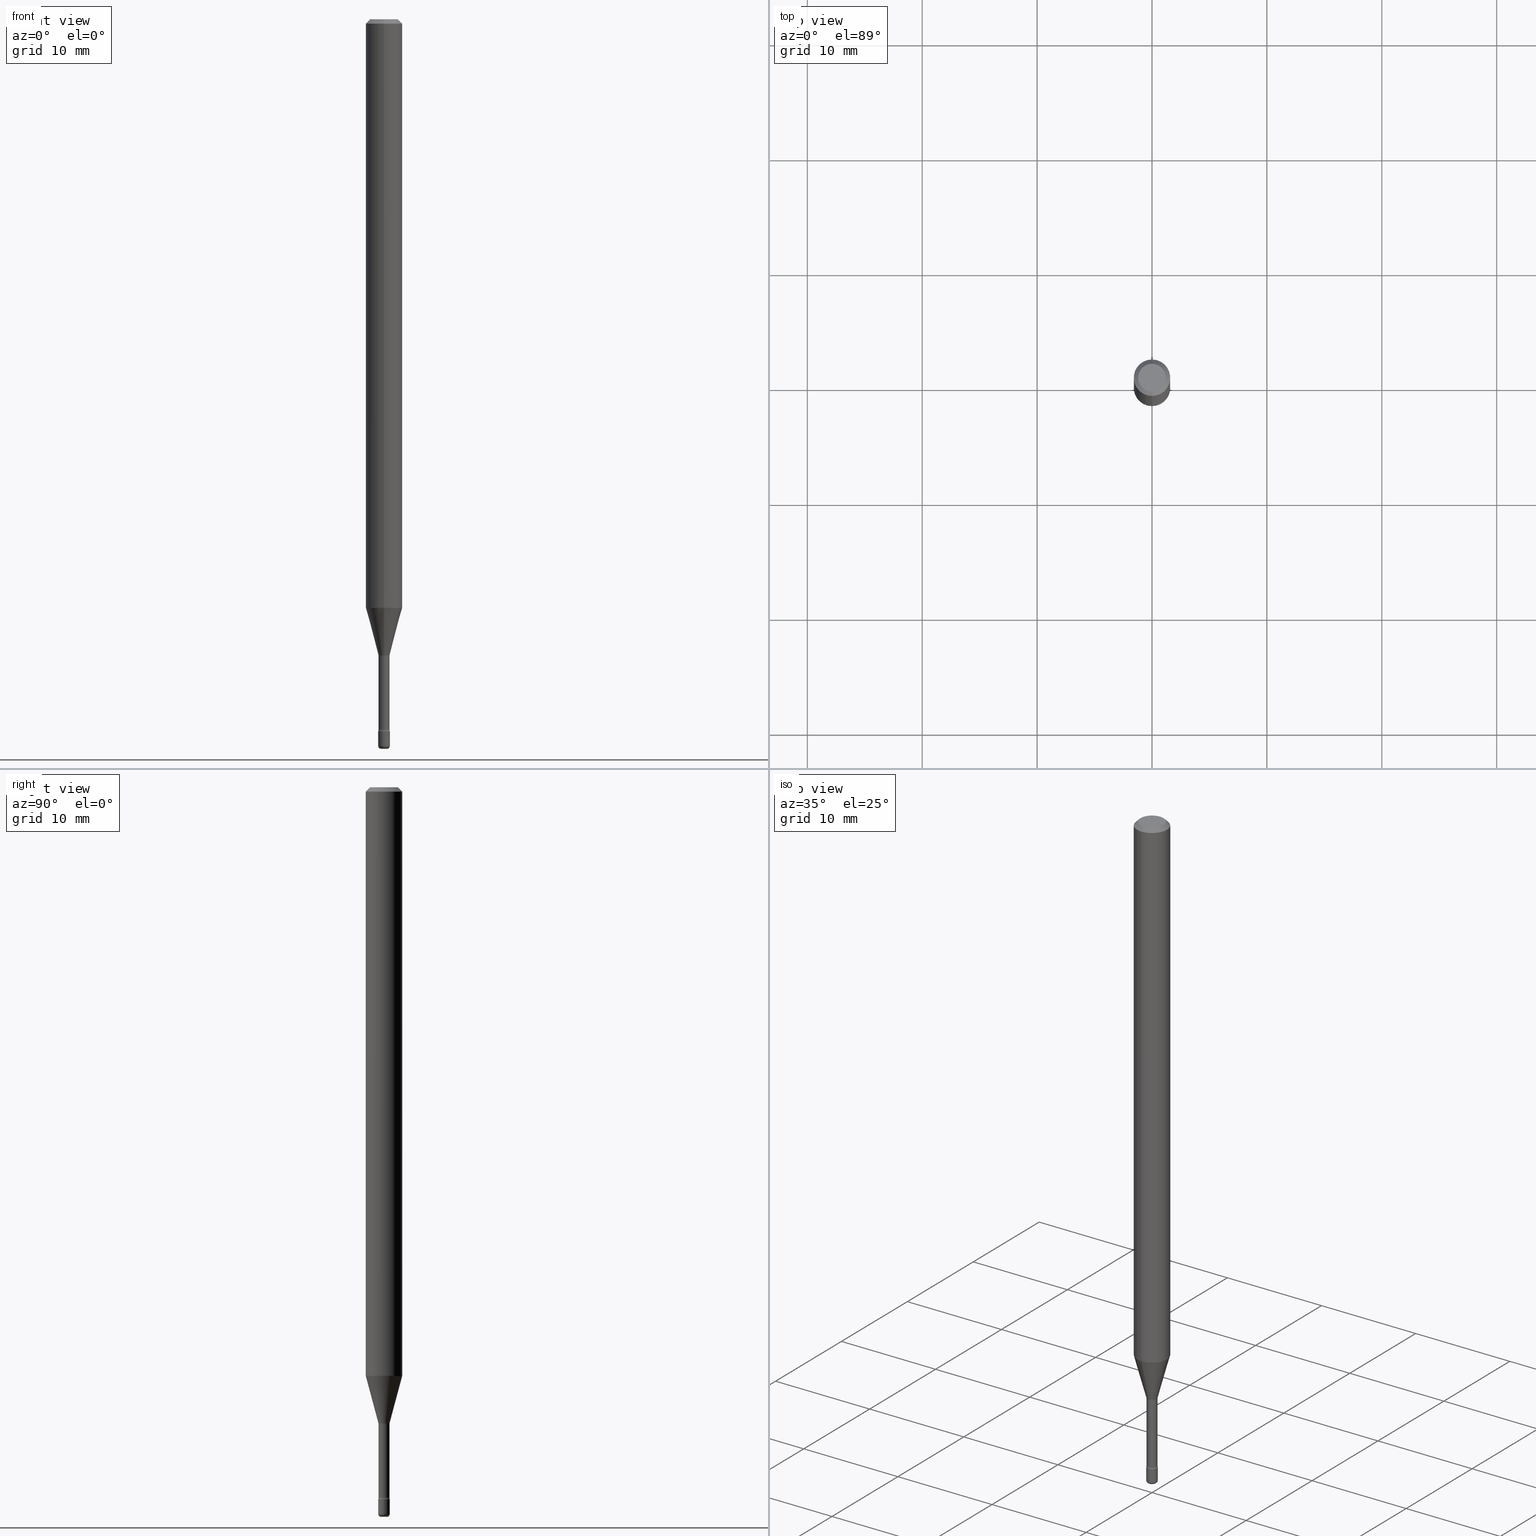
[diagram: canonical four-view strip — front | top / right | iso, engineering-drawing reading convention]
A machine part, canonical four-view strip (front | top / right | iso — engineering-drawing reading convention). The complete STEP part file that produces these views, byte-faithful:
ISO-10303-21;
HEADER;
FILE_DESCRIPTION (( 'STEP AP203' ),
    '1' );
FILE_NAME ('08804.STEP',
    '2024-03-06T20:03:07',
    ( '' ),
    ( '' ),
    'SwSTEP 2.0',
    'SolidWorks 2023',
    '' );
FILE_SCHEMA (( 'CONFIG_CONTROL_DESIGN' ));
ENDSEC;

DATA;
#1 = DIRECTION ( 'NONE',  ( 1.839019923739597160E-15, 0.2588190451025245142, 0.9659258262890673130 ) ) ;
#2 = CC_DESIGN_SECURITY_CLASSIFICATION ( #59, ( #185 ) ) ;
#3 = DIRECTION ( 'NONE',  ( -2.445468806185136597E-29, 3.491481338843145583E-15, 1.000000000000000000 ) ) ;
#4 = DIRECTION ( 'NONE',  ( -2.445405662716490355E-29, 3.491571763884150069E-15, 1.000000000000000000 ) ) ;
#5 = DIRECTION ( 'NONE',  ( -6.982962677686265133E-15, -1.000000000000000000, 3.491571763884149675E-15 ) ) ;
#6 = DIRECTION ( 'NONE',  ( -6.982962677686265922E-15, -1.000000000000000000, 3.483106191921935554E-15 ) ) ;
#7 = EDGE_CURVE ( 'NONE', #409, #557, #210, .T. ) ;
#8 = DIRECTION ( 'NONE',  ( 7.105427357601001859E-15, 1.000000000000000000, -3.491481338843145583E-15 ) ) ;
#9 = CIRCLE ( 'NONE', #88, 0.01000000000000000021 ) ;
#10 = AXIS2_PLACEMENT_3D ( 'NONE', #140, #4, #178 ) ;
#11 = CARTESIAN_POINT ( 'NONE',  ( 4.440892098501122158E-16, 0.06249999999999995143, -0.01500000000000024578 ) ) ;
#12 = ORIENTED_EDGE ( 'NONE', *, *, #132, .T. ) ;
#13 = DIRECTION ( 'NONE',  ( 6.982962677686265922E-15, 1.000000000000000000, -3.491571763884150069E-15 ) ) ;
#14 = COORDINATED_UNIVERSAL_TIME_OFFSET ( 5, 0, .BEHIND. ) ;
#15 = APPROVAL_PERSON_ORGANIZATION ( #21, #75, #225 ) ;
#16 = DIRECTION ( 'NONE',  ( -2.445468806185136877E-29, 3.491481338843145188E-15, 1.000000000000000000 ) ) ;
#17 = FACE_OUTER_BOUND ( 'NONE', #146, .T. ) ;
#18 = CARTESIAN_POINT ( 'NONE',  ( 5.966789817028236028E-29, -8.519435103877327416E-15, -2.440000000000000391 ) ) ;
#19 = ORIENTED_EDGE ( 'NONE', *, *, #46, .F. ) ;
#20 = CARTESIAN_POINT ( 'NONE',  ( 1.335820343228986430E-16, 0.01879999999999997645, 4.124318497302241550E-16 ) ) ;
#21 = PERSON_AND_ORGANIZATION ( #41, #551 ) ;
#22 = ORIENTED_EDGE ( 'NONE', *, *, #513, .F. ) ;
#23 = CIRCLE ( 'NONE', #323, 0.01879999999999999727 ) ;
#24 = DIRECTION ( 'NONE',  ( -6.982962677686265922E-15, -1.000000000000000000, 0.000000000000000000 ) ) ;
#25 = ADVANCED_FACE ( 'NONE', ( #436 ), #297, .T. ) ;
#26 = AXIS2_PLACEMENT_3D ( 'NONE', #317, #531, #179 ) ;
#27 = DIRECTION ( 'NONE',  ( -2.445405662716490355E-29, 3.491571763884150069E-15, 1.000000000000000000 ) ) ;
#28 = CC_DESIGN_PERSON_AND_ORGANIZATION_ASSIGNMENT ( #426, #201, ( #517 ) ) ;
#29 = VECTOR ( 'NONE', #1, 39.37007874015748143 ) ;
#30 = ORIENTED_EDGE ( 'NONE', *, *, #70, .F. ) ;
#31 = EDGE_CURVE ( 'NONE', #170, #147, #444, .T. ) ;
#32 = APPROVAL_DATE_TIME ( #119, #554 ) ;
#33 = CYLINDRICAL_SURFACE ( 'NONE', #105, 0.06250000000000000000 ) ;
#34 = EDGE_LOOP ( 'NONE', ( #238, #300, #286, #402 ) ) ;
#35 = DIRECTION ( 'NONE',  ( -2.445405662716490355E-29, 3.491571763884150069E-15, 1.000000000000000000 ) ) ;
#36 = CIRCLE ( 'NONE', #547, 0.04750000000000000749 ) ;
#37 = PERSON_AND_ORGANIZATION ( #41, #551 ) ;
#38 = DIRECTION ( 'NONE',  ( -4.851104656540962697E-15, -0.7071067811865497932, -0.7071067811865452413 ) ) ;
#39 = ORIENTED_EDGE ( 'NONE', *, *, #7, .T. ) ;
#40 = EDGE_CURVE ( 'NONE', #72, #170, #163, .T. ) ;
#41 = PERSON ( 'UNSPECIFIED', 'UNSPECIFIED', 'UNSPECIFIED', ('UNSPECIFIED'), ('UNSPECIFIED'), ('UNSPECIFIED') ) ;
#42 = ORIENTED_EDGE ( 'NONE', *, *, #257, .T. ) ;
#43 = AXIS2_PLACEMENT_3D ( 'NONE', #320, #279, #217 ) ;
#44 = DIRECTION ( 'NONE',  ( -2.445405662716490355E-29, 3.491571763884150069E-15, 1.000000000000000000 ) ) ;
#45 = DIRECTION ( 'NONE',  ( 7.105427357600999492E-15, 1.000000000000000000, 0.000000000000000000 ) ) ;
#46 = EDGE_CURVE ( 'NONE', #147, #332, #182, .T. ) ;
#47 = CARTESIAN_POINT ( 'NONE',  ( 3.668108494074741645E-31, -5.237357645826235236E-17, -0.01500000000000002720 ) ) ;
#48 = CARTESIAN_POINT ( 'NONE',  ( 2.401634446869734478E-16, 0.03379999999999151739, -2.434121224617320056 ) ) ;
#49 = FACE_OUTER_BOUND ( 'NONE', #34, .T. ) ;
#50 = DATE_AND_TIME ( #532, #281 ) ;
#51 = CC_DESIGN_DATE_AND_TIME_ASSIGNMENT ( #50, #195, ( #59 ) ) ;
#52 = DIRECTION ( 'NONE',  ( -2.445405662716490635E-29, 3.491571763884150069E-15, 1.000000000000000000 ) ) ;
#53 = CARTESIAN_POINT ( 'NONE',  ( 6.089217327400989947E-29, -8.693788533719431716E-15, -2.489999999999999769 ) ) ;
#54 = PERSON_AND_ORGANIZATION_ROLE ( 'classification_officer' ) ;
#55 = CIRCLE ( 'NONE', #308, 0.04750000000000000749 ) ;
#56 = CIRCLE ( 'NONE', #366, 0.01879999999999999727 ) ;
#57 = CARTESIAN_POINT ( 'NONE',  ( -1.169113584055446105E-44, 1.669184350826100908E-30, 4.780733988912460139E-16 ) ) ;
#58 = ORIENTED_EDGE ( 'NONE', *, *, #143, .T. ) ;
#59 = SECURITY_CLASSIFICATION ( '', '', #568 ) ;
#60 =( LENGTH_UNIT ( ) NAMED_UNIT ( * ) SI_UNIT ( $, .METRE. ) );
#61 = EDGE_LOOP ( 'NONE', ( #377, #404, #363, #484 ) ) ;
#62 = ORIENTED_EDGE ( 'NONE', *, *, #350, .F. ) ;
#63 = EDGE_CURVE ( 'NONE', #170, #72, #524, .T. ) ;
#64 = LINE ( 'NONE', #20, #98 ) ;
#65 = CIRCLE ( 'NONE', #291, 0.01000000000000008521 ) ;
#66 = EDGE_CURVE ( 'NONE', #374, #457, #56, .T. ) ;
#67 = VECTOR ( 'NONE', #254, 39.37007874015748143 ) ;
#68 = DIRECTION ( 'NONE',  ( -1.807323732225326984E-15, -0.2588190451025177419, 0.9659258262890690894 ) ) ;
#69 = FACE_OUTER_BOUND ( 'NONE', #177, .T. ) ;
#70 = EDGE_CURVE ( 'NONE', #82, #481, #65, .T. ) ;
#71 = AXIS2_PLACEMENT_3D ( 'NONE', #133, #438, #220 ) ;
#72 = VERTEX_POINT ( 'NONE', #199 ) ;
#73 = AXIS2_PLACEMENT_3D ( 'NONE', #106, #534, #467 ) ;
#74 = DIRECTION ( 'NONE',  ( -2.445405662716490355E-29, 3.491571763884150069E-15, 1.000000000000000000 ) ) ;
#75 = APPROVAL ( #359, 'UNSPECIFIED' ) ;
#76 = APPLICATION_PROTOCOL_DEFINITION ( 'international standard', 'config_control_design', 1994, #449 ) ;
#77 = ORIENTED_EDGE ( 'NONE', *, *, #421, .F. ) ;
#78 = CARTESIAN_POINT ( 'NONE',  ( 4.364351673553919652E-16, 0.06249999999999995143, -0.01500000000000024578 ) ) ;
#79 = AXIS2_PLACEMENT_3D ( 'NONE', #191, #535, #364 ) ;
#80 = TOROIDAL_SURFACE ( 'NONE', #10, 0.03380000000000001059, 0.01500000000000006189 ) ;
#81 =( NAMED_UNIT ( * ) SI_UNIT ( $, .STERADIAN. ) SOLID_ANGLE_UNIT ( ) );
#82 = VERTEX_POINT ( 'NONE', #290 ) ;
#83 = EDGE_CURVE ( 'NONE', #506, #378, #36, .T. ) ;
#84 = MANIFOLD_SOLID_BREP ( 'Body-Move/Copy2[1]', #346 ) ;
#85 = EDGE_LOOP ( 'NONE', ( #515, #208, #246, #564 ) ) ;
#86 = ORIENTED_EDGE ( 'NONE', *, *, #100, .F. ) ;
#87 = FACE_OUTER_BOUND ( 'NONE', #127, .T. ) ;
#88 = AXIS2_PLACEMENT_3D ( 'NONE', #187, #405, #233 ) ;
#89 = AXIS2_PLACEMENT_3D ( 'NONE', #134, #313, #560 ) ;
#90 = CARTESIAN_POINT ( 'NONE',  ( 4.932161618326981026E-29, -7.042183840505880403E-15, -2.016909379709240557 ) ) ;
#91 = DIRECTION ( 'NONE',  ( 1.000000000000000000, -6.982962677686265922E-15, 4.876176775795935793E-29 ) ) ;
#92 = AXIS2_PLACEMENT_3D ( 'NONE', #295, #128, #158 ) ;
#93 = AXIS2_PLACEMENT_3D ( 'NONE', #216, #74, #539 ) ;
#94 = DIRECTION ( 'NONE',  ( -6.982962677686265922E-15, -1.000000000000000000, 0.000000000000000000 ) ) ;
#95 = DIRECTION ( 'NONE',  ( -6.982962677686266711E-15, -1.000000000000000000, 0.000000000000000000 ) ) ;
#96 = LINE ( 'NONE', #399, #519 ) ;
#97 = DIRECTION ( 'NONE',  ( -6.982962677686265922E-15, -1.000000000000000000, 3.491571763884150069E-15 ) ) ;
#98 = VECTOR ( 'NONE', #275, 39.37007874015748143 ) ;
#99 = CIRCLE ( 'NONE', #510, 0.01000000000000008521 ) ;
#100 = EDGE_CURVE ( 'NONE', #550, #269, #239, .T. ) ;
#101 = DIRECTION ( 'NONE',  ( -2.445405662716490355E-29, 3.491571763884150069E-15, 1.000000000000000000 ) ) ;
#102 = PLANE ( 'NONE',  #416 ) ;
#103 = CC_DESIGN_APPROVAL ( #483, ( #517 ) ) ;
#104 = DIRECTION ( 'NONE',  ( -2.445468806185136597E-29, 3.491481338843145583E-15, 1.000000000000000000 ) ) ;
#105 = AXIS2_PLACEMENT_3D ( 'NONE', #108, #35, #117 ) ;
#106 = CARTESIAN_POINT ( 'NONE',  ( 5.326319737790925747E-29, -7.604966278368231039E-15, -2.178092501787273427 ) ) ;
#107 = EDGE_LOOP ( 'NONE', ( #58, #193, #349, #165 ) ) ;
#108 = CARTESIAN_POINT ( 'NONE',  ( -1.169113584055446105E-44, 1.669184350826100908E-30, 4.780733988912460139E-16 ) ) ;
#109 = DIRECTION ( 'NONE',  ( -6.982962677686265922E-15, -1.000000000000000000, 4.370956789862821150E-15 ) ) ;
#110 = AXIS2_PLACEMENT_3D ( 'NONE', #203, #148, #424 ) ;
#111 = EDGE_CURVE ( 'NONE', #150, #481, #437, .T. ) ;
#112 = TOROIDAL_SURFACE ( 'NONE', #330, 0.03380000000000000365, 0.01500000000000002373 ) ;
#113 = APPROVAL_PERSON_ORGANIZATION ( #425, #483, #212 ) ;
#114 = DIRECTION ( 'NONE',  ( -2.445405662716490355E-29, 3.491571763884150069E-15, 1.000000000000000000 ) ) ;
#115 = ORIENTED_EDGE ( 'NONE', *, *, #66, .F. ) ;
#116 = CONICAL_SURFACE ( 'NONE', #552, 0.01931111260566398605, 0.2617993877991497964 ) ;
#117 = DIRECTION ( 'NONE',  ( -6.982962677686265922E-15, -1.000000000000000000, 3.491571763884149675E-15 ) ) ;
#118 = ORIENTED_EDGE ( 'NONE', *, *, #559, .T. ) ;
#119 = DATE_AND_TIME ( #334, #205 ) ;
#120 = CARTESIAN_POINT ( 'NONE',  ( 0.02000000000000000042, -8.658873720331001644E-15, -2.440000000000000391 ) ) ;
#121 = ORIENTED_EDGE ( 'NONE', *, *, #495, .T. ) ;
#122 = ORIENTED_EDGE ( 'NONE', *, *, #468, .T. ) ;
#123 = PERSON_AND_ORGANIZATION ( #41, #551 ) ;
#124 = PLANE ( 'NONE',  #266 ) ;
#125 = CARTESIAN_POINT ( 'NONE',  ( 0.000000000000000000, 0.000000000000000000, 0.000000000000000000 ) ) ;
#126 = ORIENTED_EDGE ( 'NONE', *, *, #526, .F. ) ;
#127 = EDGE_LOOP ( 'NONE', ( #471, #118, #77, #207 ) ) ;
#128 = DIRECTION ( 'NONE',  ( -2.445405662716490355E-29, 3.491571763884150069E-15, 1.000000000000000000 ) ) ;
#129 = ADVANCED_FACE ( 'NONE', ( #464 ), #112, .F. ) ;
#130 = ORIENTED_EDGE ( 'NONE', *, *, #536, .T. ) ;
#131 = AXIS2_PLACEMENT_3D ( 'NONE', #18, #369, #545 ) ;
#132 = EDGE_CURVE ( 'NONE', #457, #374, #23, .T. ) ;
#133 = CARTESIAN_POINT ( 'NONE',  ( 6.089217327400989947E-29, -8.693788533719431716E-15, -2.489999999999999769 ) ) ;
#134 = CARTESIAN_POINT ( 'NONE',  ( 6.113672015462842613E-29, -8.728703347107864943E-15, -2.500000000000000000 ) ) ;
#135 = CARTESIAN_POINT ( 'NONE',  ( -1.169113584055446105E-44, 1.669184350826100908E-30, 4.780733988912460139E-16 ) ) ;
#136 = DIRECTION ( 'NONE',  ( -2.445405662716490075E-29, 3.491571763884150069E-15, 1.000000000000000000 ) ) ;
#137 = AXIS2_PLACEMENT_3D ( 'NONE', #48, #265, #223 ) ;
#138 = CARTESIAN_POINT ( 'NONE',  ( 5.326319737790925747E-29, -7.604966278368231039E-15, -2.178092501787273427 ) ) ;
#139 = AXIS2_PLACEMENT_3D ( 'NONE', #53, #523, #267 ) ;
#140 = CARTESIAN_POINT ( 'NONE',  ( 5.952567525274820860E-29, -8.498688832233398804E-15, -2.434121224617320056 ) ) ;
#141 = DIRECTION ( 'NONE',  ( -1.000000000000000000, 7.105427357600962416E-15, 0.000000000000000000 ) ) ;
#142 = COORDINATED_UNIVERSAL_TIME_OFFSET ( 5, 0, .BEHIND. ) ;
#143 = EDGE_CURVE ( 'NONE', #310, #325, #262, .T. ) ;
#144 = CARTESIAN_POINT ( 'NONE',  ( 1.372137078140516776E-16, 0.01931111260565637755, -2.178092501787273427 ) ) ;
#145 = AXIS2_PLACEMENT_3D ( 'NONE', #318, #392, #180 ) ;
#146 = EDGE_LOOP ( 'NONE', ( #22, #403, #121, #537 ) ) ;
#147 = VERTEX_POINT ( 'NONE', #11 ) ;
#148 = DIRECTION ( 'NONE',  ( -2.445405662716490355E-29, 3.491571763884150069E-15, 1.000000000000000000 ) ) ;
#149 = CARTESIAN_POINT ( 'NONE',  ( 5.335813501168614351E-29, -7.618521557415763764E-15, -2.181974787463811349 ) ) ;
#150 = VERTEX_POINT ( 'NONE', #485 ) ;
#151 = ADVANCED_FACE ( 'NONE', ( #87 ), #260, .T. ) ;
#152 = CARTESIAN_POINT ( 'NONE',  ( 6.089217327400989947E-29, -8.693788533719431716E-15, -2.489999999999999769 ) ) ;
#153 = CARTESIAN_POINT ( 'NONE',  ( 2.906514588320818974E-16, 0.01931111260565637755, -2.178092501787273427 ) ) ;
#154 = ORIENTED_EDGE ( 'NONE', *, *, #63, .T. ) ;
#155 = CONICAL_SURFACE ( 'NONE', #549, 0.01931111260566398605, 0.2617993877991497964 ) ;
#156 = AXIS2_PLACEMENT_3D ( 'NONE', #47, #226, #6 ) ;
#157 = EDGE_LOOP ( 'NONE', ( #386, #558, #383, #122 ) ) ;
#158 = DIRECTION ( 'NONE',  ( -6.982962677686265922E-15, -1.000000000000000000, 0.000000000000000000 ) ) ;
#159 = ADVANCED_FACE ( 'NONE', ( #525 ), #230, .T. ) ;
#160 = ORIENTED_EDGE ( 'NONE', *, *, #468, .F. ) ;
#161 = COORDINATED_UNIVERSAL_TIME_OFFSET ( 5, 0, .BEHIND. ) ;
#162 = CARTESIAN_POINT ( 'NONE',  ( -0.01000000000000000021, -8.604664530049632418E-15, -2.500000000000000000 ) ) ;
#163 = CIRCLE ( 'NONE', #489, 0.06250000000000000000 ) ;
#164 = ORIENTED_EDGE ( 'NONE', *, *, #335, .F. ) ;
#165 = ORIENTED_EDGE ( 'NONE', *, *, #236, .F. ) ;
#166 = PERSON_AND_ORGANIZATION ( #41, #551 ) ;
#167 = FACE_OUTER_BOUND ( 'NONE', #368, .T. ) ;
#168 = EDGE_CURVE ( 'NONE', #481, #150, #572, .T. ) ;
#169 = APPROVAL_DATE_TIME ( #303, #483 ) ;
#170 = VERTEX_POINT ( 'NONE', #358 ) ;
#171 = CIRCLE ( 'NONE', #211, 0.01500000000000002373 ) ;
#172 = AXIS2_PLACEMENT_3D ( 'NONE', #135, #101, #493 ) ;
#173 = EDGE_CURVE ( 'NONE', #325, #550, #429, .T. ) ;
#174 = ORIENTED_EDGE ( 'NONE', *, *, #373, .F. ) ;
#175 = FACE_OUTER_BOUND ( 'NONE', #157, .T. ) ;
#176 = ORIENTED_EDGE ( 'NONE', *, *, #40, .T. ) ;
#177 = EDGE_LOOP ( 'NONE', ( #418, #543, #459, #234 ) ) ;
#178 = DIRECTION ( 'NONE',  ( -6.982962677686265922E-15, -1.000000000000000000, 3.491571763884150069E-15 ) ) ;
#179 = DIRECTION ( 'NONE',  ( -6.982962677686267499E-15, -1.000000000000000000, 0.000000000000000000 ) ) ;
#180 = DIRECTION ( 'NONE',  ( -6.982962677686265922E-15, -1.000000000000000000, 3.491571763884150069E-15 ) ) ;
#181 = FACE_OUTER_BOUND ( 'NONE', #304, .T. ) ;
#182 = CIRCLE ( 'NONE', #156, 0.06250000000000000000 ) ;
#183 = DIRECTION ( 'NONE',  ( -2.445405662716490355E-29, 3.491571763884150069E-15, 1.000000000000000000 ) ) ;
#184 = FACE_OUTER_BOUND ( 'NONE', #198, .T. ) ;
#185 = PRODUCT_DEFINITION_FORMATION_WITH_SPECIFIED_SOURCE ( 'ANY', '', #501, .NOT_KNOWN. ) ;
#186 = ADVANCED_FACE ( 'NONE', ( #175 ), #80, .F. ) ;
#187 = CARTESIAN_POINT ( 'NONE',  ( 6.113672015462842613E-29, -8.728703347107864943E-15, -2.500000000000000000 ) ) ;
#188 = AXIS2_PLACEMENT_3D ( 'NONE', #566, #340, #344 ) ;
#189 = DIRECTION ( 'NONE',  ( -6.982962677686265922E-15, -1.000000000000000000, 0.000000000000000000 ) ) ;
#190 = LINE ( 'NONE', #144, #29 ) ;
#191 = CARTESIAN_POINT ( 'NONE',  ( 3.668108494074741645E-31, -5.237357645826235236E-17, -0.01500000000000002720 ) ) ;
#192 = DIRECTION ( 'NONE',  ( -6.982962677686265922E-15, -1.000000000000000000, 3.491571763884150069E-15 ) ) ;
#193 = ORIENTED_EDGE ( 'NONE', *, *, #335, .T. ) ;
#194 = CARTESIAN_POINT ( 'NONE',  ( -1.312796983404419221E-16, -0.01880000000000844884, -2.434121224617320056 ) ) ;
#195 = DATE_TIME_ROLE ( 'classification_date' ) ;
#196 = ADVANCED_FACE ( 'NONE', ( #497 ), #396, .F. ) ;
#197 = AXIS2_PLACEMENT_3D ( 'NONE', #492, #3, #314 ) ;
#198 = EDGE_LOOP ( 'NONE', ( #164, #476, #563, #115 ) ) ;
#199 = CARTESIAN_POINT ( 'NONE',  ( -4.364351673553424149E-16, -0.06250000000000706379, -2.016909379709240113 ) ) ;
#200 = CARTESIAN_POINT ( 'NONE',  ( 1.421085471520799689E-16, 0.01999999999999151762, -2.440000000000000391 ) ) ;
#201 = PERSON_AND_ORGANIZATION_ROLE ( 'creator' ) ;
#202 = AXIS2_PLACEMENT_3D ( 'NONE', #458, #390, #351 ) ;
#203 = CARTESIAN_POINT ( 'NONE',  ( 3.668108494074741645E-31, -5.237357645826235236E-17, -0.01500000000000002720 ) ) ;
#204 = ADVANCED_FACE ( 'NONE', ( #315 ), #354, .T. ) ;
#205 = LOCAL_TIME ( 15, 3, 7.000000000000000000, #161 ) ;
#206 = ORIENTED_EDGE ( 'NONE', *, *, #40, .F. ) ;
#207 = ORIENTED_EDGE ( 'NONE', *, *, #249, .F. ) ;
#208 = ORIENTED_EDGE ( 'NONE', *, *, #513, .T. ) ;
#209 = CARTESIAN_POINT ( 'NONE',  ( 5.952567525274820860E-29, -8.498688832233398804E-15, -2.434121224617320056 ) ) ;
#210 = CIRCLE ( 'NONE', #316, 0.01931111260566398605 ) ;
#211 = AXIS2_PLACEMENT_3D ( 'NONE', #447, #486, #45 ) ;
#212 = APPROVAL_ROLE ( '' ) ;
#213 = ORIENTED_EDGE ( 'NONE', *, *, #329, .T. ) ;
#214 = LOCAL_TIME ( 15, 3, 7.000000000000000000, #562 ) ;
#215 = CONICAL_SURFACE ( 'NONE', #232, 0.06250000000000000000, 0.7853981633974480570 ) ;
#216 = CARTESIAN_POINT ( 'NONE',  ( 5.952413826417592724E-29, -8.498908937744944151E-15, -2.434121224617320056 ) ) ;
#217 = DIRECTION ( 'NONE',  ( 1.000000000000000000, -6.982962677686284065E-15, 0.000000000000000000 ) ) ;
#218 = AXIS2_PLACEMENT_3D ( 'NONE', #284, #136, #97 ) ;
#219 = APPLICATION_PROTOCOL_DEFINITION ( 'international standard', 'config_control_design', 1994, #414 ) ;
#220 = DIRECTION ( 'NONE',  ( 1.000000000000000000, -6.982962677686284065E-15, 0.000000000000000000 ) ) ;
#221 = CARTESIAN_POINT ( 'NONE',  ( 6.620336107700046510E-46, -9.461207396860594048E-32, -2.708489200769174578E-17 ) ) ;
#222 = VECTOR ( 'NONE', #68, 39.37007874015748143 ) ;
#223 = DIRECTION ( 'NONE',  ( 7.105427357601000281E-15, 1.000000000000000000, 0.000000000000000000 ) ) ;
#224 = LINE ( 'NONE', #271, #465 ) ;
#225 = APPROVAL_ROLE ( '' ) ;
#226 = DIRECTION ( 'NONE',  ( -2.445405662716490355E-29, 3.491571763884150069E-15, 1.000000000000000000 ) ) ;
#227 = CYLINDRICAL_SURFACE ( 'NONE', #277, 0.01879999999999997645 ) ;
#228 = CARTESIAN_POINT ( 'NONE',  ( 3.316907271900976589E-16, 0.04750000000000000749, 5.964459465728003776E-17 ) ) ;
#229 = AXIS2_PLACEMENT_3D ( 'NONE', #273, #395, #270 ) ;
#230 = CYLINDRICAL_SURFACE ( 'NONE', #172, 0.01879999999999997645 ) ;
#231 = CC_DESIGN_DATE_AND_TIME_ASSIGNMENT ( #423, #419, ( #517 ) ) ;
#232 = AXIS2_PLACEMENT_3D ( 'NONE', #469, #326, #251 ) ;
#233 = DIRECTION ( 'NONE',  ( 1.000000000000000000, -6.982962677686235945E-15, 0.000000000000000000 ) ) ;
#234 = ORIENTED_EDGE ( 'NONE', *, *, #268, .F. ) ;
#235 = CARTESIAN_POINT ( 'NONE',  ( -0.01000000000000000021, -8.622734260143421634E-15, -2.489999999999999769 ) ) ;
#236 = EDGE_CURVE ( 'NONE', #310, #457, #446, .T. ) ;
#237 = LENGTH_MEASURE_WITH_UNIT ( LENGTH_MEASURE( 0.02539999999999999897 ), #60 );
#238 = ORIENTED_EDGE ( 'NONE', *, *, #362, .F. ) ;
#239 = CIRCLE ( 'NONE', #131, 0.02000000000000000042 ) ;
#240 = DIRECTION ( 'NONE',  ( -2.445405662716490355E-29, 3.491571763884150069E-15, 1.000000000000000000 ) ) ;
#241 = ORIENTED_EDGE ( 'NONE', *, *, #570, .F. ) ;
#242 = CIRCLE ( 'NONE', #448, 0.01500000000000002373 ) ;
#243 = ADVANCED_FACE ( 'NONE', ( #184 ), #227, .T. ) ;
#244 = CARTESIAN_POINT ( 'NONE',  ( -3.773273898774340269E-16, -0.04750000000000000749, 1.387647667768054199E-16 ) ) ;
#245 = CC_DESIGN_APPROVAL ( #75, ( #59 ) ) ;
#246 = ORIENTED_EDGE ( 'NONE', *, *, #526, .T. ) ;
#247 = CALENDAR_DATE ( 2024, 6, 3 ) ;
#248 = DESIGN_CONTEXT ( 'detailed design', #449, 'design' ) ;
#249 = EDGE_CURVE ( 'NONE', #481, #475, #96, .T. ) ;
#250 = ORIENTED_EDGE ( 'NONE', *, *, #362, .T. ) ;
#251 = DIRECTION ( 'NONE',  ( 6.982962677686265922E-15, 1.000000000000000000, -3.483106191921935554E-15 ) ) ;
#252 = DIRECTION ( 'NONE',  ( 0.000000000000000000, 0.000000000000000000, 1.000000000000000000 ) ) ;
#253 = ORIENTED_EDGE ( 'NONE', *, *, #31, .T. ) ;
#254 = DIRECTION ( 'NONE',  ( 4.937700262164546464E-15, 0.7071067811865449082, -0.7071067811865501263 ) ) ;
#255 = CLOSED_SHELL ( 'NONE', ( #196, #159, #413, #434, #204, #548, #293, #430, #384, #370, #282, #186, #243, #129 ) ) ;
#256 = ORIENTED_EDGE ( 'NONE', *, *, #299, .T. ) ;
#257 = EDGE_CURVE ( 'NONE', #557, #170, #190, .T. ) ;
#258 =( NAMED_UNIT ( * ) PLANE_ANGLE_UNIT ( ) SI_UNIT ( $, .RADIAN. ) );
#259 = ORIENTED_EDGE ( 'NONE', *, *, #329, .F. ) ;
#260 = CYLINDRICAL_SURFACE ( 'NONE', #379, 0.02000000000000000042 ) ;
#261 = CC_DESIGN_PERSON_AND_ORGANIZATION_ASSIGNMENT ( #301, #305, ( #185 ) ) ;
#262 = CIRCLE ( 'NONE', #202, 0.01879999999999995217 ) ;
#263 = DIRECTION ( 'NONE',  ( -2.445405662716490355E-29, 3.491571763884150069E-15, 1.000000000000000000 ) ) ;
#264 = DIRECTION ( 'NONE',  ( -2.445405662716490355E-29, 3.491571763884150069E-15, 1.000000000000000000 ) ) ;
#265 = DIRECTION ( 'NONE',  ( 1.000000000000000000, -7.105427357601001070E-15, 4.926316615929452915E-29 ) ) ;
#266 = AXIS2_PLACEMENT_3D ( 'NONE', #509, #333, #553 ) ;
#267 = DIRECTION ( 'NONE',  ( 1.000000000000000000, -6.982962677686254089E-15, 4.883557194083108417E-29 ) ) ;
#268 = EDGE_CURVE ( 'NONE', #571, #475, #387, .T. ) ;
#269 = VERTEX_POINT ( 'NONE', #388 ) ;
#270 = DIRECTION ( 'NONE',  ( -6.982962677686265922E-15, -1.000000000000000000, 3.491571763884149675E-15 ) ) ;
#271 = CARTESIAN_POINT ( 'NONE',  ( -4.364351673553916201E-16, -0.06250000000000000000, 6.962966341340053686E-16 ) ) ;
#272 = FACE_OUTER_BOUND ( 'NONE', #518, .T. ) ;
#273 = CARTESIAN_POINT ( 'NONE',  ( -1.169113584055446105E-44, 1.669184350826100908E-30, 4.780733988912460139E-16 ) ) ;
#274 = TOROIDAL_SURFACE ( 'NONE', #139, 0.01000000000000000021, 0.01000000000000008347 ) ;
#275 = DIRECTION ( 'NONE',  ( -2.445405662716490635E-29, 3.491571763884150069E-15, 1.000000000000000000 ) ) ;
#276 = CARTESIAN_POINT ( 'NONE',  ( 5.335951278625193580E-29, -7.618324252256136206E-15, -2.181974787463811349 ) ) ;
#277 = AXIS2_PLACEMENT_3D ( 'NONE', #57, #529, #496 ) ;
#278 = CARTESIAN_POINT ( 'NONE',  ( -0.02000000000000000042, -8.464392953096333219E-15, -2.440000000000000391 ) ) ;
#279 = DIRECTION ( 'NONE',  ( -2.445468806185136597E-29, 3.491481338843145583E-15, 1.000000000000000000 ) ) ;
#280 = ORIENTED_EDGE ( 'NONE', *, *, #373, .T. ) ;
#281 = LOCAL_TIME ( 15, 3, 7.000000000000000000, #14 ) ;
#282 = ADVANCED_FACE ( 'NONE', ( #348 ), #522, .F. ) ;
#283 = AXIS2_PLACEMENT_3D ( 'NONE', #461, #479, #499 ) ;
#284 = CARTESIAN_POINT ( 'NONE',  ( 1.396592535537849721E-16, 0.01999999999999147945, -2.440000000000000391 ) ) ;
#285 = DIRECTION ( 'NONE',  ( 1.000000000000000000, -6.982962677686284065E-15, 0.000000000000000000 ) ) ;
#286 = ORIENTED_EDGE ( 'NONE', *, *, #70, .T. ) ;
#287 = EDGE_LOOP ( 'NONE', ( #280, #250, #294, #30 ) ) ;
#288 = CARTESIAN_POINT ( 'NONE',  ( 0.02000000000000004205, -8.833447787273158312E-15, -2.489999999999999769 ) ) ;
#289 = DIRECTION ( 'NONE',  ( -2.445405662716490355E-29, 3.491571763884150069E-15, 1.000000000000000000 ) ) ;
#290 = CARTESIAN_POINT ( 'NONE',  ( 0.01000000000000000021, -8.798532973884726663E-15, -2.500000000000000000 ) ) ;
#291 = AXIS2_PLACEMENT_3D ( 'NONE', #503, #327, #500 ) ;
#292 = LINE ( 'NONE', #450, #371 ) ;
#293 = ADVANCED_FACE ( 'NONE', ( #321 ), #155, .T. ) ;
#294 = ORIENTED_EDGE ( 'NONE', *, *, #168, .F. ) ;
#295 = CARTESIAN_POINT ( 'NONE',  ( 5.966789817028236028E-29, -8.519435103877327416E-15, -2.440000000000000391 ) ) ;
#296 = ORIENTED_EDGE ( 'NONE', *, *, #421, .T. ) ;
#297 = TOROIDAL_SURFACE ( 'NONE', #197, 0.01000000000000000021, 0.01000000000000008347 ) ;
#298 = LINE ( 'NONE', #472, #222 ) ;
#299 = EDGE_CURVE ( 'NONE', #378, #506, #55, .T. ) ;
#300 = ORIENTED_EDGE ( 'NONE', *, *, #400, .T. ) ;
#301 = PERSON_AND_ORGANIZATION ( #41, #551 ) ;
#302 = CC_DESIGN_PERSON_AND_ORGANIZATION_ASSIGNMENT ( #37, #474, ( #501 ) ) ;
#303 = DATE_AND_TIME ( #382, #214 ) ;
#304 = EDGE_LOOP ( 'NONE', ( #256, #460 ) ) ;
#305 = PERSON_AND_ORGANIZATION_ROLE ( 'creator' ) ;
#306 = ORIENTED_EDGE ( 'NONE', *, *, #66, .T. ) ;
#307 = AXIS2_PLACEMENT_3D ( 'NONE', #228, #397, #13 ) ;
#308 = AXIS2_PLACEMENT_3D ( 'NONE', #221, #391, #5 ) ;
#309 = CC_DESIGN_APPROVAL ( #554, ( #185 ) ) ;
#310 = VERTEX_POINT ( 'NONE', #194 ) ;
#311 = AXIS2_PLACEMENT_3D ( 'NONE', #125, #252, #435 ) ;
#312 = ADVANCED_FACE ( 'NONE', ( #49 ), #274, .T. ) ;
#313 = DIRECTION ( 'NONE',  ( -2.445468806185136597E-29, 3.491481338843145583E-15, 1.000000000000000000 ) ) ;
#314 = DIRECTION ( 'NONE',  ( 1.000000000000000000, -6.982962677686254089E-15, 4.883557194083108417E-29 ) ) ;
#315 = FACE_OUTER_BOUND ( 'NONE', #569, .T. ) ;
#316 = AXIS2_PLACEMENT_3D ( 'NONE', #138, #183, #189 ) ;
#317 = CARTESIAN_POINT ( 'NONE',  ( -2.360241385057363517E-16, -0.03380000000000851074, -2.434121224617320056 ) ) ;
#318 = CARTESIAN_POINT ( 'NONE',  ( 5.335951278625193580E-29, -7.618324252256136206E-15, -2.181974787463811349 ) ) ;
#319 = CARTESIAN_POINT ( 'NONE',  ( 1.335820343229583745E-16, 0.01879999999999237836, -2.181974787463811349 ) ) ;
#320 = CARTESIAN_POINT ( 'NONE',  ( 5.966943887091733341E-29, -8.519214466777275048E-15, -2.440000000000000391 ) ) ;
#321 = FACE_OUTER_BOUND ( 'NONE', #375, .T. ) ;
#322 = DIRECTION ( 'NONE',  ( -2.445405662716490355E-29, 3.491571763884150069E-15, 1.000000000000000000 ) ) ;
#323 = AXIS2_PLACEMENT_3D ( 'NONE', #149, #44, #94 ) ;
#324 = EDGE_CURVE ( 'NONE', #310, #269, #380, .T. ) ;
#325 = VERTEX_POINT ( 'NONE', #443 ) ;
#326 = DIRECTION ( 'NONE',  ( 2.445405662716490355E-29, -3.491571763884150069E-15, -1.000000000000000000 ) ) ;
#327 = DIRECTION ( 'NONE',  ( -6.982962677686266711E-15, -1.000000000000000000, 3.491481338843145583E-15 ) ) ;
#328 = ORIENTED_EDGE ( 'NONE', *, *, #400, .F. ) ;
#329 = EDGE_CURVE ( 'NONE', #72, #332, #224, .T. ) ;
#330 = AXIS2_PLACEMENT_3D ( 'NONE', #276, #456, #192 ) ;
#331 = LOCAL_TIME ( 15, 3, 7.000000000000000000, #142 ) ;
#332 = VERTEX_POINT ( 'NONE', #439 ) ;
#333 = DIRECTION ( 'NONE',  ( 2.438088387897960049E-29, -3.491481338843145188E-15, -1.000000000000000000 ) ) ;
#334 = CALENDAR_DATE ( 2024, 6, 3 ) ;
#335 = EDGE_CURVE ( 'NONE', #325, #374, #64, .T. ) ;
#336 = DIRECTION ( 'NONE',  ( -6.982962677686265922E-15, -1.000000000000000000, 3.491571763884150069E-15 ) ) ;
#337 = CIRCLE ( 'NONE', #89, 0.01000000000000000021 ) ;
#338 = COORDINATED_UNIVERSAL_TIME_OFFSET ( 5, 0, .BEHIND. ) ;
#339 = CC_DESIGN_PERSON_AND_ORGANIZATION_ASSIGNMENT ( #166, #343, ( #185 ) ) ;
#340 = DIRECTION ( 'NONE',  ( -2.445468806185136597E-29, 3.491481338843145583E-15, 1.000000000000000000 ) ) ;
#341 = ORIENTED_EDGE ( 'NONE', *, *, #536, .F. ) ;
#342 = ORIENTED_EDGE ( 'NONE', *, *, #505, .F. ) ;
#343 = PERSON_AND_ORGANIZATION_ROLE ( 'design_supplier' ) ;
#344 = DIRECTION ( 'NONE',  ( 1.000000000000000000, -6.982962677686265922E-15, 4.876176775795935793E-29 ) ) ;
#345 = ADVANCED_FACE ( 'NONE', ( #361 ), #102, .T. ) ;
#346 = CLOSED_SHELL ( 'NONE', ( #151, #25, #345, #451, #312, #480 ) ) ;
#347 =( GEOMETRIC_REPRESENTATION_CONTEXT ( 3 ) GLOBAL_UNCERTAINTY_ASSIGNED_CONTEXT ( ( #473 ) ) GLOBAL_UNIT_ASSIGNED_CONTEXT ( ( #477, #258, #81 ) ) REPRESENTATION_CONTEXT ( 'NONE', 'WORKASPACE' ) );
#348 = FACE_OUTER_BOUND ( 'NONE', #353, .T. ) ;
#349 = ORIENTED_EDGE ( 'NONE', *, *, #132, .F. ) ;
#350 = EDGE_CURVE ( 'NONE', #557, #374, #171, .T. ) ;
#351 = DIRECTION ( 'NONE',  ( -6.982962677686265133E-15, -1.000000000000000000, 0.000000000000000000 ) ) ;
#352 = DIRECTION ( 'NONE',  ( -2.445405662716490635E-29, 3.491571763884150069E-15, 1.000000000000000000 ) ) ;
#353 = EDGE_LOOP ( 'NONE', ( #160, #86 ) ) ;
#354 = CYLINDRICAL_SURFACE ( 'NONE', #229, 0.06250000000000000000 ) ;
#355 = CC_DESIGN_PERSON_AND_ORGANIZATION_ASSIGNMENT ( #406, #54, ( #59 ) ) ;
#356 = PLANE ( 'NONE',  #307 ) ;
#357 = CIRCLE ( 'NONE', #283, 0.02000000000000000042 ) ;
#358 = CARTESIAN_POINT ( 'NONE',  ( 4.440892098501117228E-16, 0.06249999999999293621, -2.016909379709241001 ) ) ;
#359 = APPROVAL_STATUS ( 'not_yet_approved' ) ;
#360 = DIRECTION ( 'NONE',  ( -2.445468806185136877E-29, 3.491481338843145188E-15, 1.000000000000000000 ) ) ;
#361 = FACE_OUTER_BOUND ( 'NONE', #538, .T. ) ;
#362 = EDGE_CURVE ( 'NONE', #453, #150, #99, .T. ) ;
#363 = ORIENTED_EDGE ( 'NONE', *, *, #100, .T. ) ;
#364 = DIRECTION ( 'NONE',  ( 6.982962677686265922E-15, 1.000000000000000000, -3.483106191921935554E-15 ) ) ;
#365 = DATE_AND_TIME ( #394, #331 ) ;
#366 = AXIS2_PLACEMENT_3D ( 'NONE', #407, #289, #411 ) ;
#367 = EDGE_LOOP ( 'NONE', ( #174, #328 ) ) ;
#368 = EDGE_LOOP ( 'NONE', ( #470, #154, #213, #19 ) ) ;
#369 = DIRECTION ( 'NONE',  ( -2.445405662716490355E-29, 3.491571763884150069E-15, 1.000000000000000000 ) ) ;
#370 = ADVANCED_FACE ( 'NONE', ( #181 ), #356, .F. ) ;
#371 = VECTOR ( 'NONE', #360, 39.37007874015748143 ) ;
#372 = FACE_OUTER_BOUND ( 'NONE', #367, .T. ) ;
#373 = EDGE_CURVE ( 'NONE', #82, #453, #9, .T. ) ;
#374 = VERTEX_POINT ( 'NONE', #319 ) ;
#375 = EDGE_LOOP ( 'NONE', ( #511, #508, #514, #385 ) ) ;
#376 = APPROVAL_STATUS ( 'not_yet_approved' ) ;
#377 = ORIENTED_EDGE ( 'NONE', *, *, #521, .F. ) ;
#378 = VERTEX_POINT ( 'NONE', #401 ) ;
#379 = AXIS2_PLACEMENT_3D ( 'NONE', #442, #490, #91 ) ;
#380 = CIRCLE ( 'NONE', #26, 0.01500000000000006189 ) ;
#381 = CYLINDRICAL_SURFACE ( 'NONE', #188, 0.02000000000000000042 ) ;
#382 = CALENDAR_DATE ( 2024, 6, 3 ) ;
#383 = ORIENTED_EDGE ( 'NONE', *, *, #324, .T. ) ;
#384 = ADVANCED_FACE ( 'NONE', ( #17 ), #428, .T. ) ;
#385 = ORIENTED_EDGE ( 'NONE', *, *, #63, .F. ) ;
#386 = ORIENTED_EDGE ( 'NONE', *, *, #173, .F. ) ;
#387 = CIRCLE ( 'NONE', #43, 0.02000000000000000042 ) ;
#388 = CARTESIAN_POINT ( 'NONE',  ( -1.396592535536659034E-16, -0.02000000000000855954, -2.440000000000000391 ) ) ;
#389 = DIRECTION ( 'NONE',  ( -2.445405662716490635E-29, 3.491571763884150069E-15, 1.000000000000000000 ) ) ;
#390 = DIRECTION ( 'NONE',  ( -2.445405662716490355E-29, 3.491571763884150069E-15, 1.000000000000000000 ) ) ;
#391 = DIRECTION ( 'NONE',  ( -2.445405662716490355E-29, 3.491571763884150069E-15, 1.000000000000000000 ) ) ;
#392 = DIRECTION ( 'NONE',  ( -2.445405662716490355E-29, 3.491571763884150069E-15, 1.000000000000000000 ) ) ;
#393 = DIRECTION ( 'NONE',  ( 1.000000000000000000, -6.982962677686265922E-15, 4.876176775795935793E-29 ) ) ;
#394 = CALENDAR_DATE ( 2024, 6, 3 ) ;
#395 = DIRECTION ( 'NONE',  ( -2.445405662716490355E-29, 3.491571763884150069E-15, 1.000000000000000000 ) ) ;
#396 = TOROIDAL_SURFACE ( 'NONE', #145, 0.03380000000000000365, 0.01500000000000002373 ) ;
#397 = DIRECTION ( 'NONE',  ( 2.445405662716490075E-29, -3.491571763884150069E-15, -1.000000000000000000 ) ) ;
#398 = CARTESIAN_POINT ( 'NONE',  ( -2.360241385057424160E-16, -0.03380000000000762256, -2.181974787463811349 ) ) ;
#399 = CARTESIAN_POINT ( 'NONE',  ( 0.02000000000000000042, -1.396592535537253145E-16, 9.752353551591871936E-31 ) ) ;
#400 = EDGE_CURVE ( 'NONE', #453, #82, #337, .T. ) ;
#401 = CARTESIAN_POINT ( 'NONE',  ( 3.840629472727447874E-16, 0.04750000000000000749, -1.929345507921888929E-16 ) ) ;
#402 = ORIENTED_EDGE ( 'NONE', *, *, #111, .F. ) ;
#403 = ORIENTED_EDGE ( 'NONE', *, *, #299, .F. ) ;
#404 = ORIENTED_EDGE ( 'NONE', *, *, #173, .T. ) ;
#405 = DIRECTION ( 'NONE',  ( -2.445468806185136597E-29, 3.491481338843145583E-15, 1.000000000000000000 ) ) ;
#406 = PERSON_AND_ORGANIZATION ( #41, #551 ) ;
#407 = CARTESIAN_POINT ( 'NONE',  ( 5.335813501168614351E-29, -7.618521557415763764E-15, -2.181974787463811349 ) ) ;
#408 = CARTESIAN_POINT ( 'NONE',  ( 5.326319737790925747E-29, -7.604966278368231039E-15, -2.178092501787273427 ) ) ;
#409 = VERTEX_POINT ( 'NONE', #427 ) ;
#410 = PRODUCT_DEFINITION_SHAPE ( 'NONE', 'NONE',  #517 ) ;
#411 = DIRECTION ( 'NONE',  ( -6.982962677686265922E-15, -1.000000000000000000, 0.000000000000000000 ) ) ;
#412 = VECTOR ( 'NONE', #389, 39.37007874015748143 ) ;
#413 = ADVANCED_FACE ( 'NONE', ( #507 ), #488, .F. ) ;
#414 = APPLICATION_CONTEXT ( 'configuration controlled 3d designs of mechanical parts and assemblies' ) ;
#415 = CARTESIAN_POINT ( 'NONE',  ( -4.287811248607203282E-16, -0.06250000000000005551, -0.01499999999999981036 ) ) ;
#416 = AXIS2_PLACEMENT_3D ( 'NONE', #455, #494, #393 ) ;
#417 = AXIS2_PLACEMENT_3D ( 'NONE', #528, #114, #109 ) ;
#418 = ORIENTED_EDGE ( 'NONE', *, *, #559, .F. ) ;
#419 = DATE_TIME_ROLE ( 'creation_date' ) ;
#420 = FACE_OUTER_BOUND ( 'NONE', #85, .T. ) ;
#421 = EDGE_CURVE ( 'NONE', #475, #571, #357, .T. ) ;
#422 = CIRCLE ( 'NONE', #92, 0.02000000000000000042 ) ;
#423 = DATE_AND_TIME ( #247, #432 ) ;
#424 = DIRECTION ( 'NONE',  ( -6.982962677686265922E-15, -1.000000000000000000, 3.483106191921935554E-15 ) ) ;
#425 = PERSON_AND_ORGANIZATION ( #41, #551 ) ;
#426 = PERSON_AND_ORGANIZATION ( #41, #551 ) ;
#427 = CARTESIAN_POINT ( 'NONE',  ( -1.348487785898951180E-16, -0.01931111260567159107, -2.178092501787273427 ) ) ;
#428 = CONICAL_SURFACE ( 'NONE', #79, 0.06250000000000000000, 0.7853981633974480570 ) ;
#429 = CIRCLE ( 'NONE', #137, 0.01500000000000006189 ) ;
#430 = ADVANCED_FACE ( 'NONE', ( #167 ), #33, .T. ) ;
#431 = LINE ( 'NONE', #415, #530 ) ;
#432 = LOCAL_TIME ( 15, 3, 7.000000000000000000, #338 ) ;
#433 = ORIENTED_EDGE ( 'NONE', *, *, #7, .F. ) ;
#434 = ADVANCED_FACE ( 'NONE', ( #420 ), #215, .T. ) ;
#435 = DIRECTION ( 'NONE',  ( 1.000000000000000000, 0.000000000000000000, 0.000000000000000000 ) ) ;
#436 = FACE_OUTER_BOUND ( 'NONE', #287, .T. ) ;
#437 = CIRCLE ( 'NONE', #454, 0.02000000000000000042 ) ;
#438 = DIRECTION ( 'NONE',  ( -2.445468806185136597E-29, 3.491481338843145583E-15, 1.000000000000000000 ) ) ;
#439 = CARTESIAN_POINT ( 'NONE',  ( -4.364351673553912750E-16, -0.06250000000000005551, -0.01499999999999981036 ) ) ;
#440 = EDGE_LOOP ( 'NONE', ( #62, #433, #130, #12 ) ) ;
#441 = DIRECTION ( 'NONE',  ( -6.982962677686265922E-15, -1.000000000000000000, 4.370956789862821150E-15 ) ) ;
#442 = CARTESIAN_POINT ( 'NONE',  ( 0.000000000000000000, 0.000000000000000000, 0.000000000000000000 ) ) ;
#443 = CARTESIAN_POINT ( 'NONE',  ( 1.378452907375190978E-16, 0.01879999999999145202, -2.434121224617320056 ) ) ;
#444 = LINE ( 'NONE', #487, #412 ) ;
#445 = CIRCLE ( 'NONE', #110, 0.06250000000000000000 ) ;
#446 = LINE ( 'NONE', #452, #561 ) ;
#447 = CARTESIAN_POINT ( 'NONE',  ( 2.401634446869671862E-16, 0.03379999999999237781, -2.181974787463811349 ) ) ;
#448 = AXIS2_PLACEMENT_3D ( 'NONE', #398, #463, #95 ) ;
#449 = APPLICATION_CONTEXT ( 'configuration controlled 3d designs of mechanical parts and assemblies' ) ;
#450 = CARTESIAN_POINT ( 'NONE',  ( -0.02000000000000000042, 1.421085471520200401E-16, -9.837870180509812545E-31 ) ) ;
#451 = ADVANCED_FACE ( 'NONE', ( #372 ), #124, .T. ) ;
#452 = CARTESIAN_POINT ( 'NONE',  ( -1.312796983405016290E-16, -0.01879999999999997645, 5.437149480522680207E-16 ) ) ;
#453 = VERTEX_POINT ( 'NONE', #162 ) ;
#454 = AXIS2_PLACEMENT_3D ( 'NONE', #152, #104, #285 ) ;
#455 = CARTESIAN_POINT ( 'NONE',  ( 5.966943887091733341E-29, -8.519214466777275048E-15, -2.440000000000000391 ) ) ;
#456 = DIRECTION ( 'NONE',  ( -2.445405662716490355E-29, 3.491571763884150069E-15, 1.000000000000000000 ) ) ;
#457 = VERTEX_POINT ( 'NONE', #482 ) ;
#458 = CARTESIAN_POINT ( 'NONE',  ( 5.952413826417592724E-29, -8.498908937744944151E-15, -2.434121224617320056 ) ) ;
#459 = ORIENTED_EDGE ( 'NONE', *, *, #249, .T. ) ;
#460 = ORIENTED_EDGE ( 'NONE', *, *, #83, .T. ) ;
#461 = CARTESIAN_POINT ( 'NONE',  ( 5.966943887091733341E-29, -8.519214466777275048E-15, -2.440000000000000391 ) ) ;
#462 = CARTESIAN_POINT ( 'NONE',  ( 6.620336107700046510E-46, -9.461207396860594048E-32, -2.708489200769174578E-17 ) ) ;
#463 = DIRECTION ( 'NONE',  ( -1.000000000000000000, 6.982962677686265922E-15, -4.883557194083112340E-29 ) ) ;
#464 = FACE_OUTER_BOUND ( 'NONE', #440, .T. ) ;
#465 = VECTOR ( 'NONE', #352, 39.37007874015748143 ) ;
#466 = MANIFOLD_SOLID_BREP ( 'Body-Move/Copy2[2]', #255 ) ;
#467 = DIRECTION ( 'NONE',  ( -6.982962677686265922E-15, -1.000000000000000000, 0.000000000000000000 ) ) ;
#468 = EDGE_CURVE ( 'NONE', #269, #550, #422, .T. ) ;
#469 = CARTESIAN_POINT ( 'NONE',  ( 3.668108494074741645E-31, -5.237357645826235236E-17, -0.01500000000000002720 ) ) ;
#470 = ORIENTED_EDGE ( 'NONE', *, *, #31, .F. ) ;
#471 = ORIENTED_EDGE ( 'NONE', *, *, #168, .T. ) ;
#472 = CARTESIAN_POINT ( 'NONE',  ( -1.348487785898951180E-16, -0.01931111260567159107, -2.178092501787273427 ) ) ;
#473 = UNCERTAINTY_MEASURE_WITH_UNIT (LENGTH_MEASURE( 1.000000000000000082E-05 ), #477, 'distance_accuracy_value', 'NONE');
#474 = PERSON_AND_ORGANIZATION_ROLE ( 'design_owner' ) ;
#475 = VERTEX_POINT ( 'NONE', #120 ) ;
#476 = ORIENTED_EDGE ( 'NONE', *, *, #521, .T. ) ;
#477 =( CONVERSION_BASED_UNIT ( 'INCH', #237 ) LENGTH_UNIT ( ) NAMED_UNIT ( #533 ) );
#478 = CIRCLE ( 'NONE', #93, 0.01879999999999995217 ) ;
#479 = DIRECTION ( 'NONE',  ( -2.445468806185136597E-29, 3.491481338843145583E-15, 1.000000000000000000 ) ) ;
#480 = ADVANCED_FACE ( 'NONE', ( #69 ), #381, .T. ) ;
#481 = VERTEX_POINT ( 'NONE', #288 ) ;
#482 = CARTESIAN_POINT ( 'NONE',  ( -1.312796983404484302E-16, -0.01880000000000761617, -2.181974787463811349 ) ) ;
#483 = APPROVAL ( #376, 'UNSPECIFIED' ) ;
#484 = ORIENTED_EDGE ( 'NONE', *, *, #324, .F. ) ;
#485 = CARTESIAN_POINT ( 'NONE',  ( -0.02000000000000004205, -8.551679986567411552E-15, -2.489999999999999769 ) ) ;
#486 = DIRECTION ( 'NONE',  ( 1.000000000000000000, -7.105427357601001070E-15, 4.926316615929452915E-29 ) ) ;
#487 = CARTESIAN_POINT ( 'NONE',  ( 4.440892098500625669E-16, 0.06250000000000000000, 2.598501636484867085E-16 ) ) ;
#488 = TOROIDAL_SURFACE ( 'NONE', #542, 0.03380000000000001059, 0.01500000000000006189 ) ;
#489 = AXIS2_PLACEMENT_3D ( 'NONE', #90, #264, #441 ) ;
#490 = DIRECTION ( 'NONE',  ( -2.445468806185136597E-29, 3.491481338843145583E-15, 1.000000000000000000 ) ) ;
#491 = DIRECTION ( 'NONE',  ( -6.982962677686265922E-15, -1.000000000000000000, 0.000000000000000000 ) ) ;
#492 = CARTESIAN_POINT ( 'NONE',  ( 6.089217327400989947E-29, -8.693788533719431716E-15, -2.489999999999999769 ) ) ;
#493 = DIRECTION ( 'NONE',  ( -6.982962677686265922E-15, -1.000000000000000000, 3.491571763884148886E-15 ) ) ;
#494 = DIRECTION ( 'NONE',  ( -2.438088387897960049E-29, 3.491481338843145188E-15, 1.000000000000000000 ) ) ;
#495 = EDGE_CURVE ( 'NONE', #378, #147, #516, .T. ) ;
#496 = DIRECTION ( 'NONE',  ( -6.982962677686265922E-15, -1.000000000000000000, 3.491571763884148886E-15 ) ) ;
#497 = FACE_OUTER_BOUND ( 'NONE', #546, .T. ) ;
#498 = APPROVAL_PERSON_ORGANIZATION ( #123, #554, #556 ) ;
#499 = DIRECTION ( 'NONE',  ( 1.000000000000000000, -6.982962677686284065E-15, 0.000000000000000000 ) ) ;
#500 = DIRECTION ( 'NONE',  ( 1.000000000000000000, -6.982962677686273021E-15, 0.000000000000000000 ) ) ;
#501 = PRODUCT ( '08804', '08804', '', ( #567 ) ) ;
#502 = PRODUCT_RELATED_PRODUCT_CATEGORY ( 'detail', '', ( #501 ) ) ;
#503 = CARTESIAN_POINT ( 'NONE',  ( 0.01000000000000000021, -8.763618160496295014E-15, -2.489999999999999769 ) ) ;
#504 = ADVANCED_BREP_SHAPE_REPRESENTATION ( '08804', ( #84, #466, #311 ), #347 ) ;
#505 = EDGE_CURVE ( 'NONE', #409, #72, #298, .T. ) ;
#506 = VERTEX_POINT ( 'NONE', #244 ) ;
#507 = FACE_OUTER_BOUND ( 'NONE', #61, .T. ) ;
#508 = ORIENTED_EDGE ( 'NONE', *, *, #570, .T. ) ;
#509 = CARTESIAN_POINT ( 'NONE',  ( 6.982962677692379396E-17, 0.009999999999991271080, -2.500000000000000000 ) ) ;
#510 = AXIS2_PLACEMENT_3D ( 'NONE', #235, #8, #141 ) ;
#511 = ORIENTED_EDGE ( 'NONE', *, *, #257, .F. ) ;
#512 = ORIENTED_EDGE ( 'NONE', *, *, #350, .T. ) ;
#513 = EDGE_CURVE ( 'NONE', #506, #332, #431, .T. ) ;
#514 = ORIENTED_EDGE ( 'NONE', *, *, #505, .T. ) ;
#515 = ORIENTED_EDGE ( 'NONE', *, *, #83, .F. ) ;
#516 = LINE ( 'NONE', #78, #67 ) ;
#517 = PRODUCT_DEFINITION ( 'UNKNOWN', '', #185, #248 ) ;
#518 = EDGE_LOOP ( 'NONE', ( #39, #42, #206, #342 ) ) ;
#519 = VECTOR ( 'NONE', #16, 39.37007874015748143 ) ;
#520 = CIRCLE ( 'NONE', #73, 0.01931111260566398605 ) ;
#521 = EDGE_CURVE ( 'NONE', #325, #310, #478, .T. ) ;
#522 = PLANE ( 'NONE',  #218 ) ;
#523 = DIRECTION ( 'NONE',  ( -2.445468806185136597E-29, 3.491481338843145583E-15, 1.000000000000000000 ) ) ;
#524 = CIRCLE ( 'NONE', #417, 0.06250000000000000000 ) ;
#525 = FACE_OUTER_BOUND ( 'NONE', #107, .T. ) ;
#526 = EDGE_CURVE ( 'NONE', #332, #147, #445, .T. ) ;
#527 = CARTESIAN_POINT ( 'NONE',  ( 5.326319737790925747E-29, -7.604966278368231039E-15, -2.178092501787273427 ) ) ;
#528 = CARTESIAN_POINT ( 'NONE',  ( 4.932161618326981026E-29, -7.042183840505880403E-15, -2.016909379709240557 ) ) ;
#529 = DIRECTION ( 'NONE',  ( -2.445405662716490355E-29, 3.491571763884150069E-15, 1.000000000000000000 ) ) ;
#530 = VECTOR ( 'NONE', #38, 39.37007874015748143 ) ;
#531 = DIRECTION ( 'NONE',  ( -1.000000000000000000, 6.982962677686265922E-15, -4.883557194083112340E-29 ) ) ;
#532 = CALENDAR_DATE ( 2024, 6, 3 ) ;
#533 = DIMENSIONAL_EXPONENTS ( 1.000000000000000000, 0.000000000000000000, 0.000000000000000000, 0.000000000000000000, 0.000000000000000000, 0.000000000000000000, 0.000000000000000000 ) ;
#534 = DIRECTION ( 'NONE',  ( -2.445405662716490355E-29, 3.491571763884150069E-15, 1.000000000000000000 ) ) ;
#535 = DIRECTION ( 'NONE',  ( 2.445405662716490355E-29, -3.491571763884150069E-15, -1.000000000000000000 ) ) ;
#536 = EDGE_CURVE ( 'NONE', #409, #457, #242, .T. ) ;
#537 = ORIENTED_EDGE ( 'NONE', *, *, #46, .T. ) ;
#538 = EDGE_LOOP ( 'NONE', ( #296, #555 ) ) ;
#539 = DIRECTION ( 'NONE',  ( -6.982962677686265133E-15, -1.000000000000000000, 0.000000000000000000 ) ) ;
#540 = APPROVAL_DATE_TIME ( #365, #75 ) ;
#541 = DIRECTION ( 'NONE',  ( -6.982962677686265133E-15, -1.000000000000000000, 3.491571763884149675E-15 ) ) ;
#542 = AXIS2_PLACEMENT_3D ( 'NONE', #209, #27, #336 ) ;
#543 = ORIENTED_EDGE ( 'NONE', *, *, #111, .T. ) ;
#544 = SHAPE_DEFINITION_REPRESENTATION ( #410, #504 ) ;
#545 = DIRECTION ( 'NONE',  ( -6.982962677686265922E-15, -1.000000000000000000, 0.000000000000000000 ) ) ;
#546 = EDGE_LOOP ( 'NONE', ( #241, #512, #306, #341 ) ) ;
#547 = AXIS2_PLACEMENT_3D ( 'NONE', #462, #322, #541 ) ;
#548 = ADVANCED_FACE ( 'NONE', ( #272 ), #116, .T. ) ;
#549 = AXIS2_PLACEMENT_3D ( 'NONE', #527, #263, #491 ) ;
#550 = VERTEX_POINT ( 'NONE', #200 ) ;
#551 = ORGANIZATION ( 'UNSPECIFIED', 'UNSPECIFIED', '' ) ;
#552 = AXIS2_PLACEMENT_3D ( 'NONE', #408, #240, #24 ) ;
#553 = DIRECTION ( 'NONE',  ( -1.000000000000000000, 6.982962677686265922E-15, -4.876176775795935793E-29 ) ) ;
#554 = APPROVAL ( #565, 'UNSPECIFIED' ) ;
#555 = ORIENTED_EDGE ( 'NONE', *, *, #268, .T. ) ;
#556 = APPROVAL_ROLE ( '' ) ;
#557 = VERTEX_POINT ( 'NONE', #153 ) ;
#558 = ORIENTED_EDGE ( 'NONE', *, *, #143, .F. ) ;
#559 = EDGE_CURVE ( 'NONE', #150, #571, #292, .T. ) ;
#560 = DIRECTION ( 'NONE',  ( 1.000000000000000000, -6.982962677686235945E-15, 0.000000000000000000 ) ) ;
#561 = VECTOR ( 'NONE', #52, 39.37007874015748143 ) ;
#562 = COORDINATED_UNIVERSAL_TIME_OFFSET ( 5, 0, .BEHIND. ) ;
#563 = ORIENTED_EDGE ( 'NONE', *, *, #236, .T. ) ;
#564 = ORIENTED_EDGE ( 'NONE', *, *, #495, .F. ) ;
#565 = APPROVAL_STATUS ( 'not_yet_approved' ) ;
#566 = CARTESIAN_POINT ( 'NONE',  ( 0.000000000000000000, 0.000000000000000000, 0.000000000000000000 ) ) ;
#567 = MECHANICAL_CONTEXT ( 'NONE', #414, 'mechanical' ) ;
#568 = SECURITY_CLASSIFICATION_LEVEL ( 'unclassified' ) ;
#569 = EDGE_LOOP ( 'NONE', ( #176, #253, #126, #259 ) ) ;
#570 = EDGE_CURVE ( 'NONE', #557, #409, #520, .T. ) ;
#571 = VERTEX_POINT ( 'NONE', #278 ) ;
#572 = CIRCLE ( 'NONE', #71, 0.02000000000000000042 ) ;
ENDSEC;
END-ISO-10303-21;
